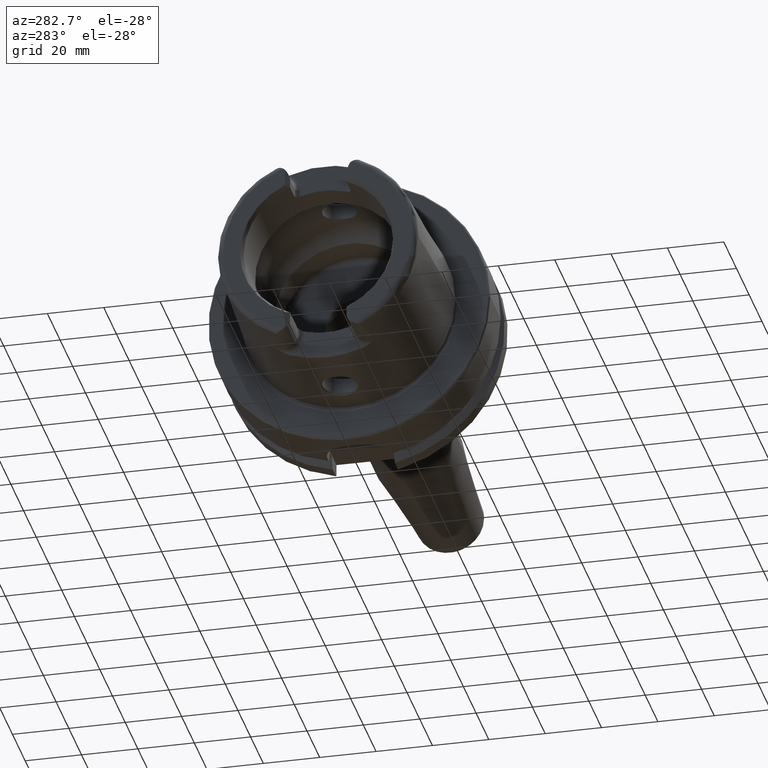
[diagram: clean part render]
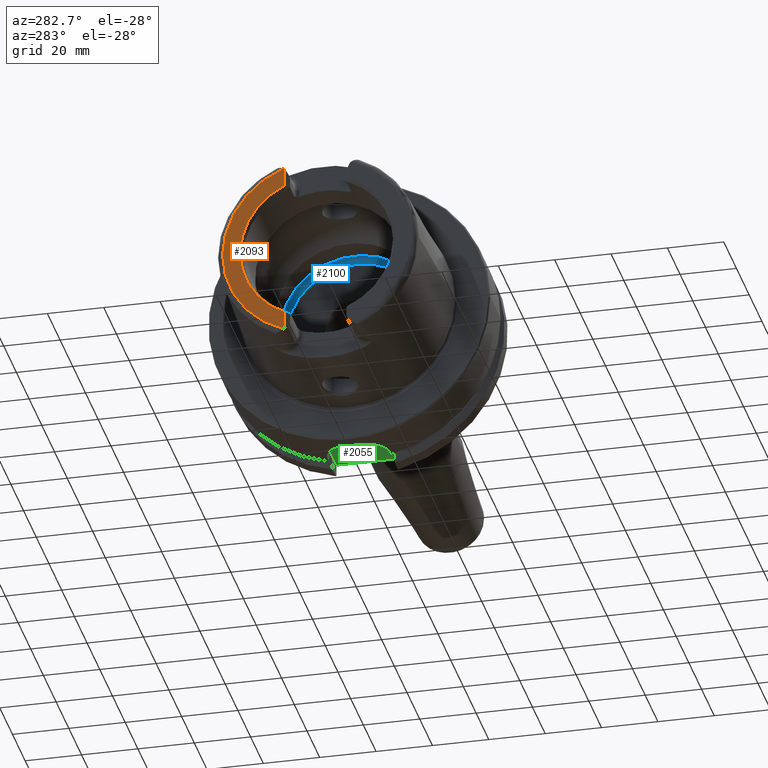
[diagram: same view with three faces highlighted in distinct colors, each labeled with its STEP entity id]
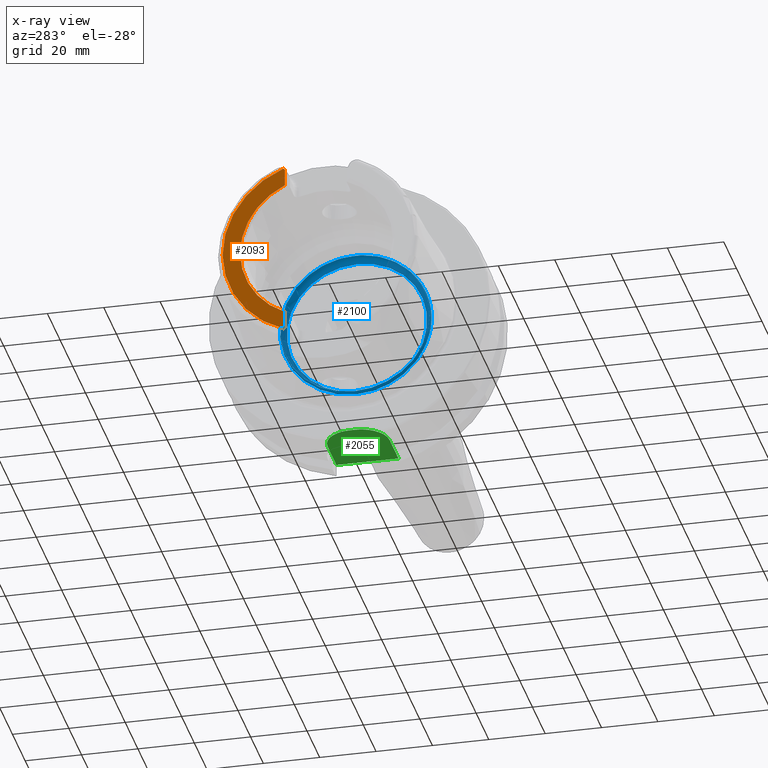
[diagram: x-ray of the same camera — body ghosted, the three highlighted faces saturated]
A machine part, auxiliary view with three faces highlighted in distinct colors.
The next image is the same camera in x-ray (body ghosted, the three faces saturated) — at least one of them is partly hidden behind the body in this view.
Their STEP definitions:

[orange] entity #2093 — the highlighted planar face has unit normal (-1, 0, 0).
#131=PLANE('',#2352);
#309=FACE_OUTER_BOUND('',#440,.T.);
#440=EDGE_LOOP('',(#1876,#1877,#1878,#1879,#1880,#1881));
#487=LINE('',#3152,#593);
#499=LINE('',#3263,#605);
#593=VECTOR('',#2529,10.);
#605=VECTOR('',#2589,10.);
#708=CIRCLE('',#2194,4.88);
#719=CIRCLE('',#2219,4.88);
#783=CIRCLE('',#2344,27.3660254037844);
#784=CIRCLE('',#2348,33.6001839277785);
#851=VERTEX_POINT('',#3145);
#854=VERTEX_POINT('',#3150);
#857=VERTEX_POINT('',#3160);
#878=VERTEX_POINT('',#3260);
#879=VERTEX_POINT('',#3262);
#884=VERTEX_POINT('',#3281);
#1074=EDGE_CURVE('',#854,#851,#487,.T.);
#1078=EDGE_CURVE('',#857,#851,#708,.T.);
#1105=EDGE_CURVE('',#878,#879,#499,.T.);
#1112=EDGE_CURVE('',#878,#884,#719,.T.);
#1300=EDGE_CURVE('',#879,#854,#783,.T.);
#1302=EDGE_CURVE('',#857,#884,#784,.T.);
#1876=ORIENTED_EDGE('',*,*,#1074,.F.);
#1877=ORIENTED_EDGE('',*,*,#1300,.F.);
#1878=ORIENTED_EDGE('',*,*,#1105,.F.);
#1879=ORIENTED_EDGE('',*,*,#1112,.T.);
#1880=ORIENTED_EDGE('',*,*,#1302,.F.);
#1881=ORIENTED_EDGE('',*,*,#1078,.T.);
#2093=ADVANCED_FACE('',(#309),#131,.T.);
#2194=AXIS2_PLACEMENT_3D('',#3161,#2537,#2538);
#2219=AXIS2_PLACEMENT_3D('',#3294,#2598,#2599);
#2344=AXIS2_PLACEMENT_3D('',#4477,#2910,#2911);
#2348=AXIS2_PLACEMENT_3D('',#4482,#2919,#2920);
#2352=AXIS2_PLACEMENT_3D('',#4489,#2928,#2929);
#2529=DIRECTION('',(0.,0.,-1.));
#2537=DIRECTION('center_axis',(-1.,0.,0.));
#2538=DIRECTION('ref_axis',(0.,-0.477884921181368,0.878422450821629));
#2589=DIRECTION('',(0.,0.,-1.));
#2598=DIRECTION('center_axis',(-1.,0.,0.));
#2599=DIRECTION('ref_axis',(0.,1.,0.));
#2910=DIRECTION('center_axis',(-1.,0.,0.));
#2911=DIRECTION('ref_axis',(0.,-1.,0.));
#2919=DIRECTION('center_axis',(1.,0.,0.));
#2920=DIRECTION('ref_axis',(0.,0.,-1.));
#2928=DIRECTION('center_axis',(-1.,0.,0.));
#2929=DIRECTION('ref_axis',(0.,0.,1.));
#3145=CARTESIAN_POINT('',(-50.,11.51,-30.8899431813596));
#3150=CARTESIAN_POINT('',(-50.,11.51,-24.8277918148307));
#3152=CARTESIAN_POINT('',(-50.,11.51,-10.));
#3160=CARTESIAN_POINT('',(-50.,12.0743049948301,-31.355757348091));
#3161=CARTESIAN_POINT('Origin',(-50.,14.89,-27.37));
#3260=CARTESIAN_POINT('',(-50.,11.51,30.8899431813596));
#3262=CARTESIAN_POINT('',(-50.,11.51,24.8277918148307));
#3263=CARTESIAN_POINT('',(-50.,11.51,13.685));
#3281=CARTESIAN_POINT('',(-50.,12.0743049948301,31.355757348091));
#3294=CARTESIAN_POINT('Origin',(-50.,14.89,27.37));
#4477=CARTESIAN_POINT('Origin',(-50.,0.,0.));
#4482=CARTESIAN_POINT('Origin',(-50.,0.,0.));
#4489=CARTESIAN_POINT('Origin',(-50.,33.6001839277785,0.));

[blue] entity #2100 — the highlighted toroidal blend (fillet) surface has major radius 24.9 mm and minor (blend) radius 2 mm.
#160=TOROIDAL_SURFACE('',#2367,24.9,2.);
#316=FACE_OUTER_BOUND('',#450,.T.);
#450=EDGE_LOOP('',(#1902,#1903,#1904,#1905,#1906));
#794=CIRCLE('',#2366,24.9);
#795=CIRCLE('',#2368,2.);
#796=CIRCLE('',#2369,26.5);
#797=CIRCLE('',#2370,26.5);
#1011=VERTEX_POINT('',#4511);
#1012=VERTEX_POINT('',#4514);
#1013=VERTEX_POINT('',#4516);
#1315=EDGE_CURVE('',#1011,#1011,#794,.T.);
#1316=EDGE_CURVE('',#1011,#1012,#795,.T.);
#1317=EDGE_CURVE('',#1012,#1013,#796,.T.);
#1318=EDGE_CURVE('',#1013,#1012,#797,.T.);
#1902=ORIENTED_EDGE('',*,*,#1315,.F.);
#1903=ORIENTED_EDGE('',*,*,#1316,.T.);
#1904=ORIENTED_EDGE('',*,*,#1317,.T.);
#1905=ORIENTED_EDGE('',*,*,#1318,.T.);
#1906=ORIENTED_EDGE('',*,*,#1316,.F.);
#2100=ADVANCED_FACE('',(#316),#160,.F.);
#2366=AXIS2_PLACEMENT_3D('',#4512,#2958,#2959);
#2367=AXIS2_PLACEMENT_3D('',#4513,#2960,#2961);
#2368=AXIS2_PLACEMENT_3D('',#4515,#2962,#2963);
#2369=AXIS2_PLACEMENT_3D('',#4517,#2964,#2965);
#2370=AXIS2_PLACEMENT_3D('',#4518,#2966,#2967);
#2958=DIRECTION('center_axis',(-1.,0.,0.));
#2959=DIRECTION('ref_axis',(0.,0.,1.));
#2960=DIRECTION('center_axis',(-1.,0.,0.));
#2961=DIRECTION('ref_axis',(0.,0.,1.));
#2962=DIRECTION('center_axis',(0.,1.,-1.22464679914735E-16));
#2963=DIRECTION('ref_axis',(0.,-1.22464679914735E-16,-1.));
#2964=DIRECTION('center_axis',(-1.,0.,0.));
#2965=DIRECTION('ref_axis',(0.,0.,1.));
#2966=DIRECTION('center_axis',(-1.,0.,0.));
#2967=DIRECTION('ref_axis',(0.,0.,1.));
#4511=CARTESIAN_POINT('',(12.5,-3.04937052987691E-15,-24.9));
#4512=CARTESIAN_POINT('Origin',(12.5,0.,0.));
#4513=CARTESIAN_POINT('Origin',(10.5,0.,0.));
#4514=CARTESIAN_POINT('',(9.3,-3.24531401774049E-15,-26.5));
#4515=CARTESIAN_POINT('Origin',(10.5,-3.04937052987691E-15,-24.9));
#4516=CARTESIAN_POINT('',(9.3,-26.5,3.24531401774049E-15));
#4517=CARTESIAN_POINT('Origin',(9.3,0.,0.));
#4518=CARTESIAN_POINT('Origin',(9.3,0.,0.));

[green] entity #2055 — the highlighted planar face has unit normal (0, 0, 1).
#120=PLANE('',#2282);
#271=FACE_OUTER_BOUND('',#402,.T.);
#402=EDGE_LOOP('',(#1686,#1687,#1688,#1689,#1690,#1691));
#475=LINE('',#3082,#581);
#532=LINE('',#4187,#638);
#544=LINE('',#4281,#650);
#546=LINE('',#4287,#652);
#581=VECTOR('',#2449,10.);
#638=VECTOR('',#2742,10.);
#650=VECTOR('',#2760,10.);
#652=VECTOR('',#2768,10.);
#753=CIRCLE('',#2277,10.);
#754=CIRCLE('',#2280,10.);
#829=VERTEX_POINT('',#3079);
#830=VERTEX_POINT('',#3081);
#962=VERTEX_POINT('',#4186);
#970=VERTEX_POINT('',#4227);
#971=VERTEX_POINT('',#4229);
#980=VERTEX_POINT('',#4283);
#1041=EDGE_CURVE('',#829,#830,#475,.T.);
#1219=EDGE_CURVE('',#830,#962,#532,.T.);
#1230=EDGE_CURVE('',#970,#971,#753,.T.);
#1241=EDGE_CURVE('',#971,#829,#544,.T.);
#1242=EDGE_CURVE('',#962,#980,#754,.T.);
#1244=EDGE_CURVE('',#980,#970,#546,.T.);
#1686=ORIENTED_EDGE('',*,*,#1244,.F.);
#1687=ORIENTED_EDGE('',*,*,#1242,.F.);
#1688=ORIENTED_EDGE('',*,*,#1219,.F.);
#1689=ORIENTED_EDGE('',*,*,#1041,.F.);
#1690=ORIENTED_EDGE('',*,*,#1241,.F.);
#1691=ORIENTED_EDGE('',*,*,#1230,.F.);
#2055=ADVANCED_FACE('',(#271),#120,.F.);
#2277=AXIS2_PLACEMENT_3D('',#4230,#2751,#2752);
#2280=AXIS2_PLACEMENT_3D('',#4284,#2763,#2764);
#2282=AXIS2_PLACEMENT_3D('',#4288,#2769,#2770);
#2449=DIRECTION('',(0.,1.,0.));
#2742=DIRECTION('',(-1.,-1.58603289232165E-16,0.));
#2751=DIRECTION('center_axis',(0.,0.,1.));
#2752=DIRECTION('ref_axis',(-1.,-2.4980018054066E-16,0.));
#2760=DIRECTION('',(1.,1.58603289232165E-16,0.));
#2763=DIRECTION('center_axis',(0.,0.,1.));
#2764=DIRECTION('ref_axis',(-2.22044604925031E-16,1.,0.));
#2768=DIRECTION('',(0.,-1.,0.));
#2769=DIRECTION('center_axis',(0.,0.,1.));
#2770=DIRECTION('ref_axis',(1.,0.,0.));
#3079=CARTESIAN_POINT('',(29.,-11.,-44.));
#3081=CARTESIAN_POINT('',(29.,11.,-44.));
#3082=CARTESIAN_POINT('',(29.,-5.55111512312578E-16,-44.));
#4186=CARTESIAN_POINT('',(15.,11.,-44.));
#4187=CARTESIAN_POINT('',(29.,11.,-44.));
#4227=CARTESIAN_POINT('',(4.99999999999999,-1.00000000000001,-44.));
#4229=CARTESIAN_POINT('',(15.,-11.,-44.));
#4230=CARTESIAN_POINT('Origin',(15.,-1.,-44.));
#4281=CARTESIAN_POINT('',(15.,-11.,-44.));
#4283=CARTESIAN_POINT('',(4.99999999999999,0.999999999999997,-44.));
#4284=CARTESIAN_POINT('Origin',(15.,1.,-44.));
#4287=CARTESIAN_POINT('',(4.99999999999999,0.999999999999997,-44.));
#4288=CARTESIAN_POINT('Origin',(17.,-1.11022302462516E-15,-44.));